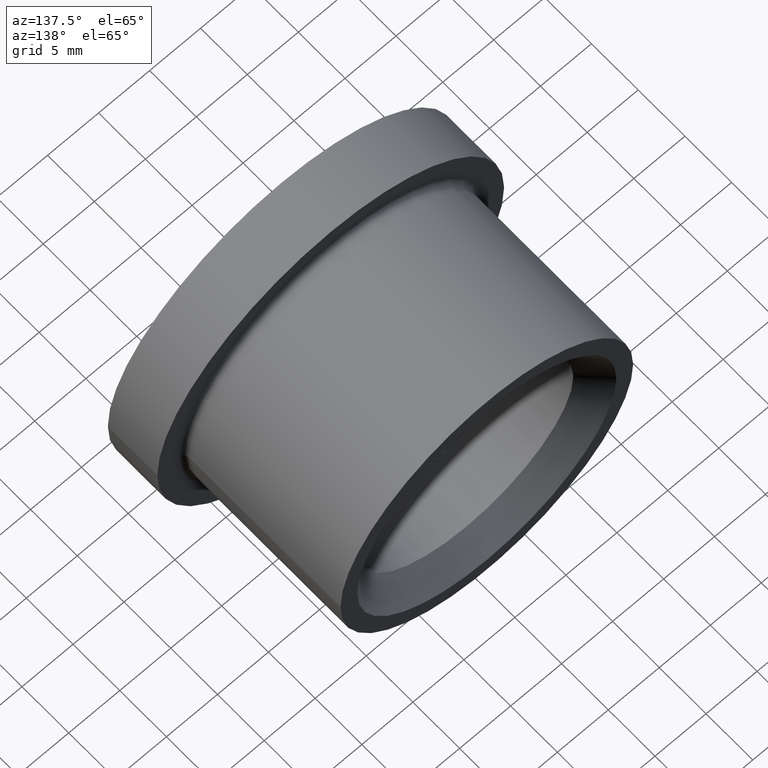
[diagram: clean part render]
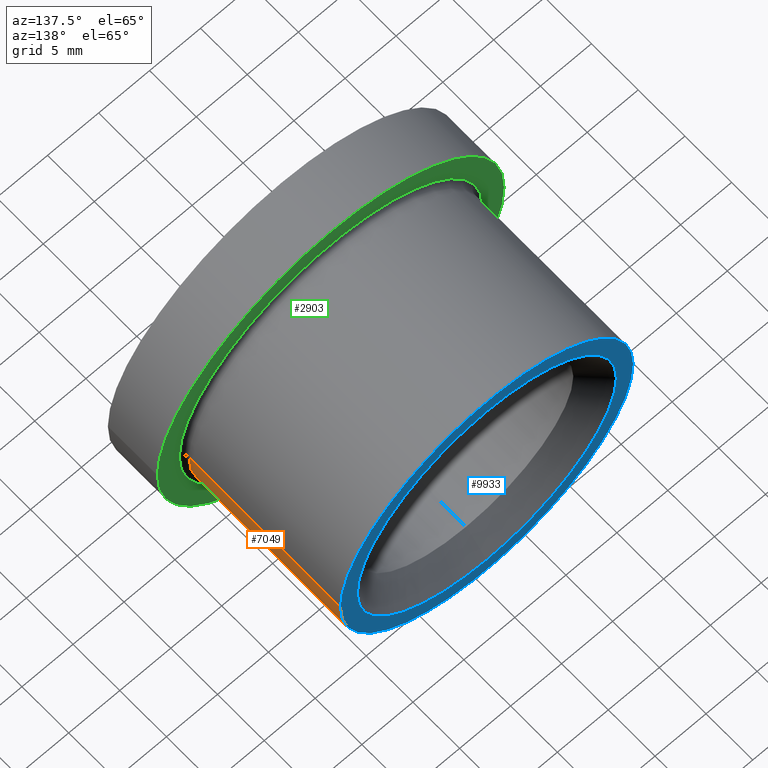
[diagram: same view with three faces highlighted in distinct colors, each labeled with its STEP entity id]
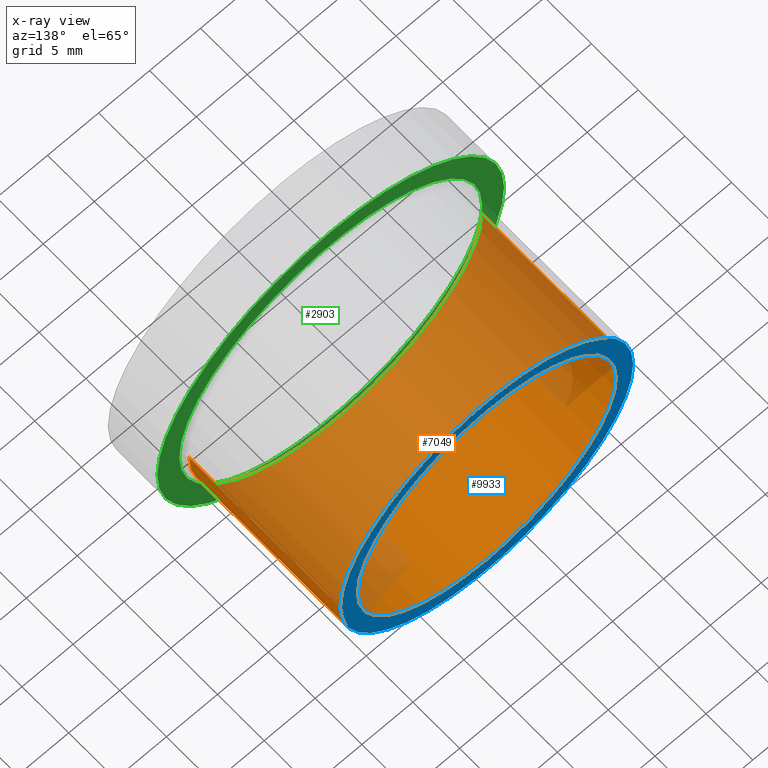
[diagram: x-ray of the same camera — body ghosted, the three highlighted faces saturated]
A machine part, auxiliary view with three faces highlighted in distinct colors.
The next image is the same camera in x-ray (body ghosted, the three faces saturated) — at least one of them is partly hidden behind the body in this view.
Their STEP definitions:

[orange] entity #7049 — the highlighted cylindrical surface (partial cylindrical patch) has radius 14.35 mm, axis along (-0, 1, -0).
#1362 = AXIS2_PLACEMENT_3D ( 'NONE', #1410, #8080, #10998 ) ;
#1410 = CARTESIAN_POINT ( 'NONE',  ( -8.071535721653002500E-017, 5.799999999999999800, 0.0000000000000000000 ) ) ;
#1474 = CARTESIAN_POINT ( 'NONE',  ( -3.061616997868380200E-016, 22.00000000000000000, 0.0000000000000000000 ) ) ;
#1699 = VECTOR ( 'NONE', #5865, 1000.000000000000000 ) ;
#2447 = DIRECTION ( 'NONE',  ( -1.000000000000000000, 0.0000000000000000000, 0.0000000000000000000 ) ) ;
#2586 = VERTEX_POINT ( 'NONE', #2894 ) ;
#2662 = ORIENTED_EDGE ( 'NONE', *, *, #5268, .T. ) ;
#2894 = CARTESIAN_POINT ( 'NONE',  ( 14.34999999999999800, 5.799999999999999800, 1.757368156776451600E-015 ) ) ;
#3505 = DIRECTION ( 'NONE',  ( -1.391644089940172800E-017, 1.000000000000000000, -0.0000000000000000000 ) ) ;
#3707 = ORIENTED_EDGE ( 'NONE', *, *, #5708, .F. ) ;
#3937 = CARTESIAN_POINT ( 'NONE',  ( 14.35000000000000100, 22.00000000000000700, 1.757368156776452000E-015 ) ) ;
#4424 = FACE_OUTER_BOUND ( 'NONE', #9257, .T. ) ;
#4888 = CARTESIAN_POINT ( 'NONE',  ( 14.34999999999999800, 22.00000000000000000, 1.757368156776451600E-015 ) ) ;
#4920 = DIRECTION ( 'NONE',  ( -1.000000000000000000, 0.0000000000000000000, 0.0000000000000000000 ) ) ;
#5268 = EDGE_CURVE ( 'NONE', #6419, #6567, #10771, .T. ) ;
#5287 = ORIENTED_EDGE ( 'NONE', *, *, #10949, .T. ) ;
#5380 = CARTESIAN_POINT ( 'NONE',  ( -14.35000000000000000, 22.00000000000000700, 0.0000000000000000000 ) ) ;
#5708 = EDGE_CURVE ( 'NONE', #9726, #6567, #11058, .T. ) ;
#5814 = CARTESIAN_POINT ( 'NONE',  ( -14.34999999999999800, 5.799999999999999800, 0.0000000000000000000 ) ) ;
#5865 = DIRECTION ( 'NONE',  ( -1.391644089940172800E-017, 1.000000000000000000, -0.0000000000000000000 ) ) ;
#6419 = VERTEX_POINT ( 'NONE', #5814 ) ;
#6567 = VERTEX_POINT ( 'NONE', #5380 ) ;
#6764 = LINE ( 'NONE', #4888, #1699 ) ;
#6814 = CIRCLE ( 'NONE', #1362, 14.34999999999999800 ) ;
#7049 = ADVANCED_FACE ( 'NONE', ( #4424 ), #8318, .T. ) ;
#7182 = AXIS2_PLACEMENT_3D ( 'NONE', #1474, #12063, #2447 ) ;
#8080 = DIRECTION ( 'NONE',  ( -1.391644089940172800E-017, 1.000000000000000000, -0.0000000000000000000 ) ) ;
#8158 = EDGE_CURVE ( 'NONE', #2586, #9726, #6764, .T. ) ;
#8318 = CYLINDRICAL_SURFACE ( 'NONE', #7182, 14.34999999999999800 ) ;
#9175 = CARTESIAN_POINT ( 'NONE',  ( -14.34999999999999800, 22.00000000000000000, 0.0000000000000000000 ) ) ;
#9257 = EDGE_LOOP ( 'NONE', ( #10049, #5287, #2662, #3707 ) ) ;
#9726 = VERTEX_POINT ( 'NONE', #3937 ) ;
#9731 = VECTOR ( 'NONE', #3505, 1000.000000000000000 ) ;
#9777 = AXIS2_PLACEMENT_3D ( 'NONE', #11569, #11668, #4920 ) ;
#10049 = ORIENTED_EDGE ( 'NONE', *, *, #8158, .F. ) ;
#10771 = LINE ( 'NONE', #9175, #9731 ) ;
#10949 = EDGE_CURVE ( 'NONE', #2586, #6419, #6814, .T. ) ;
#10998 = DIRECTION ( 'NONE',  ( 1.000000000000000000, 0.0000000000000000000, 0.0000000000000000000 ) ) ;
#11058 = CIRCLE ( 'NONE', #9777, 14.35000000000000000 ) ;
#11569 = CARTESIAN_POINT ( 'NONE',  ( -3.061616997868381200E-016, 22.00000000000000700, 0.0000000000000000000 ) ) ;
#11668 = DIRECTION ( 'NONE',  ( -1.391644089940172800E-017, 1.000000000000000000, -0.0000000000000000000 ) ) ;
#12063 = DIRECTION ( 'NONE',  ( -1.391644089940172800E-017, 1.000000000000000000, -0.0000000000000000000 ) ) ;

[blue] entity #9933 — the highlighted planar face has unit normal (0, -1, 0).
#110 = DIRECTION ( 'NONE',  ( -0.0000000000000000000, 1.000000000000000000, -0.0000000000000000000 ) ) ;
#691 = DIRECTION ( 'NONE',  ( -0.0000000000000000000, 1.000000000000000000, -0.0000000000000000000 ) ) ;
#1003 = CIRCLE ( 'NONE', #5635, 12.69999999999999900 ) ;
#1921 = DIRECTION ( 'NONE',  ( -1.000000000000000000, 0.0000000000000000000, 0.0000000000000000000 ) ) ;
#2174 = DIRECTION ( 'NONE',  ( 1.000000000000000000, 1.391644089940172800E-017, 0.0000000000000000000 ) ) ;
#2276 = CARTESIAN_POINT ( 'NONE',  ( -3.061616997868381200E-016, 22.00000000000000400, 12.69999999999999900 ) ) ;
#2513 = FACE_OUTER_BOUND ( 'NONE', #8054, .T. ) ;
#2585 = CARTESIAN_POINT ( 'NONE',  ( 1.249139735130300600E-015, 22.00000000000000400, -12.69999999999999900 ) ) ;
#2965 = DIRECTION ( 'NONE',  ( -1.391644089940172800E-017, 1.000000000000000000, -0.0000000000000000000 ) ) ;
#3043 = CARTESIAN_POINT ( 'NONE',  ( -3.061616997868381200E-016, 22.00000000000000400, 0.0000000000000000000 ) ) ;
#3933 = PLANE ( 'NONE',  #4279 ) ;
#3937 = CARTESIAN_POINT ( 'NONE',  ( 14.35000000000000100, 22.00000000000000700, 1.757368156776452000E-015 ) ) ;
#4168 = CIRCLE ( 'NONE', #4537, 12.69999999999999900 ) ;
#4279 = AXIS2_PLACEMENT_3D ( 'NONE', #10633, #8833, #2174 ) ;
#4537 = AXIS2_PLACEMENT_3D ( 'NONE', #3043, #110, #7822 ) ;
#4920 = DIRECTION ( 'NONE',  ( -1.000000000000000000, 0.0000000000000000000, 0.0000000000000000000 ) ) ;
#5187 = ORIENTED_EDGE ( 'NONE', *, *, #5630, .F. ) ;
#5380 = CARTESIAN_POINT ( 'NONE',  ( -14.35000000000000000, 22.00000000000000700, 0.0000000000000000000 ) ) ;
#5536 = VERTEX_POINT ( 'NONE', #2276 ) ;
#5630 = EDGE_CURVE ( 'NONE', #5536, #8326, #4168, .T. ) ;
#5635 = AXIS2_PLACEMENT_3D ( 'NONE', #11164, #691, #7388 ) ;
#5708 = EDGE_CURVE ( 'NONE', #9726, #6567, #11058, .T. ) ;
#5776 = CARTESIAN_POINT ( 'NONE',  ( -3.061616997868381200E-016, 22.00000000000000700, 0.0000000000000000000 ) ) ;
#6413 = EDGE_LOOP ( 'NONE', ( #5187, #11038 ) ) ;
#6567 = VERTEX_POINT ( 'NONE', #5380 ) ;
#7388 = DIRECTION ( 'NONE',  ( 0.0000000000000000000, 0.0000000000000000000, 1.000000000000000000 ) ) ;
#7550 = CIRCLE ( 'NONE', #10710, 14.35000000000000000 ) ;
#7564 = FACE_BOUND ( 'NONE', #6413, .T. ) ;
#7811 = EDGE_CURVE ( 'NONE', #8326, #5536, #1003, .T. ) ;
#7822 = DIRECTION ( 'NONE',  ( 0.0000000000000000000, 0.0000000000000000000, 1.000000000000000000 ) ) ;
#8054 = EDGE_LOOP ( 'NONE', ( #8926, #9067 ) ) ;
#8326 = VERTEX_POINT ( 'NONE', #2585 ) ;
#8833 = DIRECTION ( 'NONE',  ( 1.391644089940172800E-017, -1.000000000000000000, 0.0000000000000000000 ) ) ;
#8926 = ORIENTED_EDGE ( 'NONE', *, *, #10649, .T. ) ;
#9067 = ORIENTED_EDGE ( 'NONE', *, *, #5708, .T. ) ;
#9726 = VERTEX_POINT ( 'NONE', #3937 ) ;
#9777 = AXIS2_PLACEMENT_3D ( 'NONE', #11569, #11668, #4920 ) ;
#9933 = ADVANCED_FACE ( 'NONE', ( #7564, #2513 ), #3933, .F. ) ;
#10633 = CARTESIAN_POINT ( 'NONE',  ( 14.35000000000000000, 22.00000000000000400, 0.0000000000000000000 ) ) ;
#10649 = EDGE_CURVE ( 'NONE', #6567, #9726, #7550, .T. ) ;
#10710 = AXIS2_PLACEMENT_3D ( 'NONE', #5776, #2965, #1921 ) ;
#11038 = ORIENTED_EDGE ( 'NONE', *, *, #7811, .F. ) ;
#11058 = CIRCLE ( 'NONE', #9777, 14.35000000000000000 ) ;
#11164 = CARTESIAN_POINT ( 'NONE',  ( -3.061616997868381200E-016, 22.00000000000000400, 0.0000000000000000000 ) ) ;
#11569 = CARTESIAN_POINT ( 'NONE',  ( -3.061616997868381200E-016, 22.00000000000000700, 0.0000000000000000000 ) ) ;
#11668 = DIRECTION ( 'NONE',  ( -1.391644089940172800E-017, 1.000000000000000000, -0.0000000000000000000 ) ) ;

[green] entity #2903 — the highlighted planar face has unit normal (0, -1, 0).
#284 = DIRECTION ( 'NONE',  ( 1.391644089940172800E-017, -1.000000000000000000, 0.0000000000000000000 ) ) ;
#519 = CARTESIAN_POINT ( 'NONE',  ( 14.84999999999999800, 5.299999999999998900, 0.0000000000000000000 ) ) ;
#639 = CARTESIAN_POINT ( 'NONE',  ( 17.00000000000000000, 5.299999999999998900, 0.0000000000000000000 ) ) ;
#849 = FACE_BOUND ( 'NONE', #9267, .T. ) ;
#967 = DIRECTION ( 'NONE',  ( -1.391644089940172800E-017, 1.000000000000000000, -0.0000000000000000000 ) ) ;
#1131 = DIRECTION ( 'NONE',  ( -1.391644089940172800E-017, 1.000000000000000000, -0.0000000000000000000 ) ) ;
#1670 = CARTESIAN_POINT ( 'NONE',  ( 17.00000000000000000, 5.299999999999998900, 2.081899558550500300E-015 ) ) ;
#1931 = CARTESIAN_POINT ( 'NONE',  ( -7.375713676682917400E-017, 5.299999999999998900, 0.0000000000000000000 ) ) ;
#2627 = EDGE_CURVE ( 'NONE', #10215, #7563, #2630, .T. ) ;
#2630 = CIRCLE ( 'NONE', #3836, 17.00000000000000000 ) ;
#2734 = CARTESIAN_POINT ( 'NONE',  ( -14.84999999999999800, 5.299999999999998900, 1.818600496733819600E-015 ) ) ;
#2804 = CIRCLE ( 'NONE', #9913, 14.84999999999999800 ) ;
#2903 = ADVANCED_FACE ( 'NONE', ( #849, #8768 ), #5325, .F. ) ;
#2992 = VERTEX_POINT ( 'NONE', #2734 ) ;
#3206 = CIRCLE ( 'NONE', #5231, 14.84999999999999800 ) ;
#3359 = DIRECTION ( 'NONE',  ( 1.000000000000000000, 1.391644089940172800E-017, 0.0000000000000000000 ) ) ;
#3836 = AXIS2_PLACEMENT_3D ( 'NONE', #8509, #967, #8585 ) ;
#4454 = ORIENTED_EDGE ( 'NONE', *, *, #2627, .T. ) ;
#4727 = ORIENTED_EDGE ( 'NONE', *, *, #9701, .T. ) ;
#4769 = DIRECTION ( 'NONE',  ( -1.000000000000000000, 0.0000000000000000000, 0.0000000000000000000 ) ) ;
#5231 = AXIS2_PLACEMENT_3D ( 'NONE', #6063, #284, #8831 ) ;
#5325 = PLANE ( 'NONE',  #6164 ) ;
#5769 = DIRECTION ( 'NONE',  ( 1.000000000000000000, 0.0000000000000000000, 0.0000000000000000000 ) ) ;
#5949 = VERTEX_POINT ( 'NONE', #519 ) ;
#6063 = CARTESIAN_POINT ( 'NONE',  ( -7.375713676682914900E-017, 5.299999999999998900, 0.0000000000000000000 ) ) ;
#6164 = AXIS2_PLACEMENT_3D ( 'NONE', #639, #8133, #3359 ) ;
#6746 = DIRECTION ( 'NONE',  ( 1.391644089940172800E-017, -1.000000000000000000, 0.0000000000000000000 ) ) ;
#7563 = VERTEX_POINT ( 'NONE', #1670 ) ;
#8079 = EDGE_CURVE ( 'NONE', #7563, #10215, #10596, .T. ) ;
#8103 = CARTESIAN_POINT ( 'NONE',  ( -17.00000000000000000, 5.299999999999998900, 0.0000000000000000000 ) ) ;
#8133 = DIRECTION ( 'NONE',  ( 1.391644089940172800E-017, -1.000000000000000000, 0.0000000000000000000 ) ) ;
#8469 = ORIENTED_EDGE ( 'NONE', *, *, #8630, .T. ) ;
#8509 = CARTESIAN_POINT ( 'NONE',  ( -7.375713676682917400E-017, 5.299999999999998900, 0.0000000000000000000 ) ) ;
#8585 = DIRECTION ( 'NONE',  ( -1.000000000000000000, 0.0000000000000000000, 0.0000000000000000000 ) ) ;
#8630 = EDGE_CURVE ( 'NONE', #2992, #5949, #3206, .T. ) ;
#8768 = FACE_OUTER_BOUND ( 'NONE', #12114, .T. ) ;
#8831 = DIRECTION ( 'NONE',  ( 1.000000000000000000, 0.0000000000000000000, 0.0000000000000000000 ) ) ;
#9267 = EDGE_LOOP ( 'NONE', ( #4727, #8469 ) ) ;
#9701 = EDGE_CURVE ( 'NONE', #5949, #2992, #2804, .T. ) ;
#9913 = AXIS2_PLACEMENT_3D ( 'NONE', #11506, #6746, #5769 ) ;
#10215 = VERTEX_POINT ( 'NONE', #8103 ) ;
#10596 = CIRCLE ( 'NONE', #11659, 17.00000000000000000 ) ;
#11506 = CARTESIAN_POINT ( 'NONE',  ( -7.375713676682914900E-017, 5.299999999999998900, 0.0000000000000000000 ) ) ;
#11627 = ORIENTED_EDGE ( 'NONE', *, *, #8079, .T. ) ;
#11659 = AXIS2_PLACEMENT_3D ( 'NONE', #1931, #1131, #4769 ) ;
#12114 = EDGE_LOOP ( 'NONE', ( #4454, #11627 ) ) ;